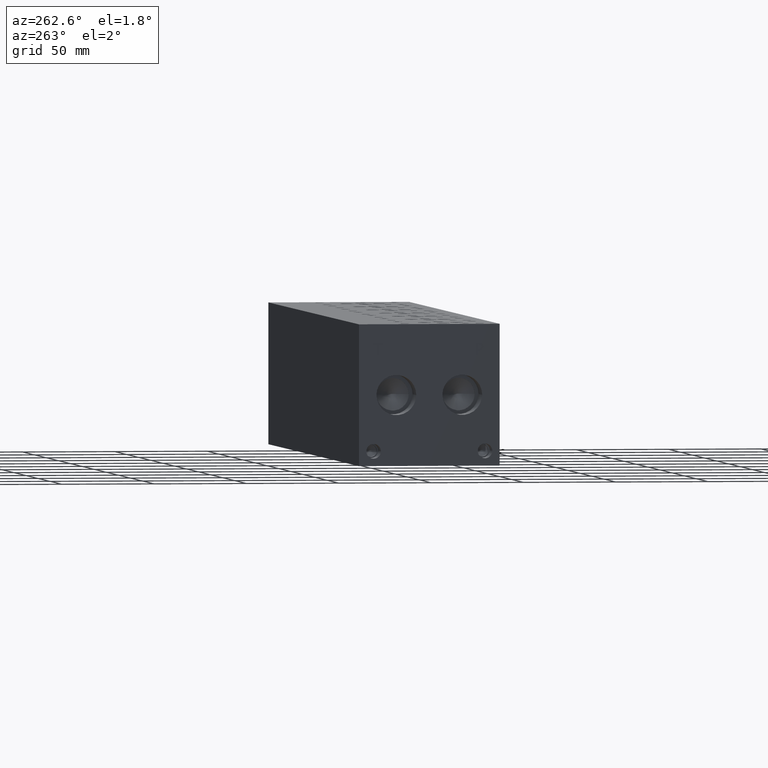
[diagram: clean part render]
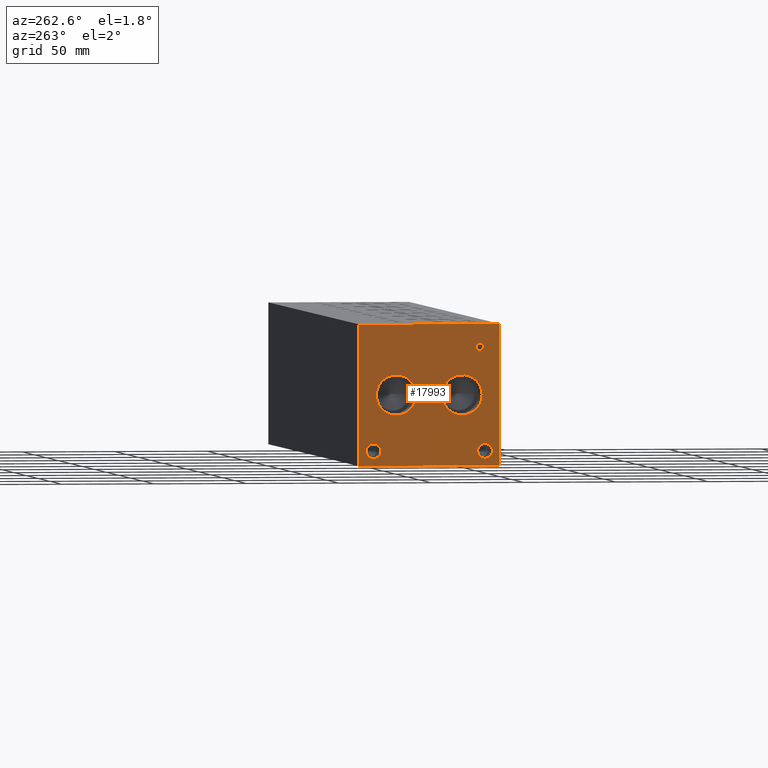
[diagram: same view with one face highlighted and labeled with its STEP entity id]
A machine part, auxiliary view. The second image highlights one B-rep face of the part: STEP entity #17993.
In plain terms, the highlighted planar face has unit normal (-1, 0, 0).
Its self-contained STEP definition (entity closure, byte-faithful):
#275=CIRCLE('',#18777,10.795);
#276=CIRCLE('',#18778,10.795);
#277=CIRCLE('',#18779,10.795);
#278=CIRCLE('',#18780,10.795);
#279=CIRCLE('',#18781,3.9624);
#280=CIRCLE('',#18782,3.9624);
#281=CIRCLE('',#18783,3.9624);
#282=CIRCLE('',#18784,3.9624);
#821=FACE_BOUND('',#3137,.T.);
#822=FACE_BOUND('',#3138,.T.);
#823=FACE_BOUND('',#3139,.T.);
#824=FACE_BOUND('',#3140,.T.);
#825=FACE_BOUND('',#3141,.T.);
#826=FACE_BOUND('',#3142,.T.);
#1382=PLANE('',#18776);
#2104=FACE_OUTER_BOUND('',#3136,.T.);
#3136=EDGE_LOOP('',(#14998,#14999,#15000,#15001));
#3137=EDGE_LOOP('',(#15002,#15003));
#3138=EDGE_LOOP('',(#15004,#15005));
#3139=EDGE_LOOP('',(#15006,#15007));
#3140=EDGE_LOOP('',(#15008,#15009));
#3141=EDGE_LOOP('',(#15010,#15011,#15012,#15013,#15014,#15015,#15016,#15017));
#3142=EDGE_LOOP('',(#15018,#15019,#15020,#15021,#15022,#15023,#15024,#15025,
#15026));
#3593=LINE('',#23911,#5185);
#4870=LINE('',#29973,#6462);
#4873=LINE('',#29979,#6465);
#4876=LINE('',#29985,#6468);
#4879=LINE('',#29991,#6471);
#4882=LINE('',#29997,#6474);
#4886=LINE('',#30039,#6478);
#4887=LINE('',#30041,#6479);
#4888=LINE('',#30042,#6480);
#4889=LINE('',#30061,#6481);
#4890=LINE('',#30063,#6482);
#4891=LINE('',#30065,#6483);
#4892=LINE('',#30067,#6484);
#4893=LINE('',#30069,#6485);
#4894=LINE('',#30071,#6486);
#4895=LINE('',#30073,#6487);
#4896=LINE('',#30074,#6488);
#5185=VECTOR('',#19598,10.);
#6462=VECTOR('',#21799,10.);
#6465=VECTOR('',#21804,10.);
#6468=VECTOR('',#21809,10.);
#6471=VECTOR('',#21814,10.);
#6474=VECTOR('',#21819,10.);
#6478=VECTOR('',#21827,10.);
#6479=VECTOR('',#21828,10.);
#6480=VECTOR('',#21829,10.);
#6481=VECTOR('',#21846,10.);
#6482=VECTOR('',#21847,10.);
#6483=VECTOR('',#21848,10.);
#6484=VECTOR('',#21849,10.);
#6485=VECTOR('',#21850,10.);
#6486=VECTOR('',#21851,10.);
#6487=VECTOR('',#21852,10.);
#6488=VECTOR('',#21853,10.);
#7150=B_SPLINE_CURVE_WITH_KNOTS('',2,(#29940,#29941,#29942,#29943),
 .UNSPECIFIED.,.F.,.F.,(3,1,3),(0.,1.,2.),.UNSPECIFIED.);
#7152=B_SPLINE_CURVE_WITH_KNOTS('',2,(#29961,#29962,#29963,#29964),
 .UNSPECIFIED.,.F.,.F.,(3,1,3),(0.,1.,2.),.UNSPECIFIED.);
#7154=B_SPLINE_CURVE_WITH_KNOTS('',2,(#30010,#30011,#30012,#30013),
 .UNSPECIFIED.,.F.,.F.,(3,1,3),(0.,1.,2.),.UNSPECIFIED.);
#7156=B_SPLINE_CURVE_WITH_KNOTS('',2,(#30028,#30029,#30030,#30031),
 .UNSPECIFIED.,.F.,.F.,(3,1,3),(0.,1.,2.),.UNSPECIFIED.);
#7206=VERTEX_POINT('',#23904);
#7209=VERTEX_POINT('',#23909);
#8358=VERTEX_POINT('',#29938);
#8359=VERTEX_POINT('',#29939);
#8362=VERTEX_POINT('',#29960);
#8364=VERTEX_POINT('',#29972);
#8366=VERTEX_POINT('',#29978);
#8368=VERTEX_POINT('',#29984);
#8370=VERTEX_POINT('',#29990);
#8372=VERTEX_POINT('',#29996);
#8374=VERTEX_POINT('',#30009);
#8376=VERTEX_POINT('',#30038);
#8377=VERTEX_POINT('',#30040);
#8378=VERTEX_POINT('',#30043);
#8379=VERTEX_POINT('',#30044);
#8380=VERTEX_POINT('',#30047);
#8381=VERTEX_POINT('',#30048);
#8382=VERTEX_POINT('',#30051);
#8383=VERTEX_POINT('',#30052);
#8384=VERTEX_POINT('',#30055);
#8385=VERTEX_POINT('',#30056);
#8386=VERTEX_POINT('',#30059);
#8387=VERTEX_POINT('',#30060);
#8388=VERTEX_POINT('',#30062);
#8389=VERTEX_POINT('',#30064);
#8390=VERTEX_POINT('',#30066);
#8391=VERTEX_POINT('',#30068);
#8392=VERTEX_POINT('',#30070);
#8393=VERTEX_POINT('',#30072);
#9014=EDGE_CURVE('',#7206,#7209,#3593,.T.);
#10718=EDGE_CURVE('',#8358,#8359,#7150,.T.);
#10722=EDGE_CURVE('',#8362,#8358,#7152,.T.);
#10725=EDGE_CURVE('',#8364,#8362,#4870,.T.);
#10728=EDGE_CURVE('',#8366,#8364,#4873,.T.);
#10731=EDGE_CURVE('',#8368,#8366,#4876,.T.);
#10734=EDGE_CURVE('',#8370,#8368,#4879,.T.);
#10737=EDGE_CURVE('',#8372,#8370,#4882,.T.);
#10740=EDGE_CURVE('',#8374,#8372,#7154,.T.);
#10743=EDGE_CURVE('',#8359,#8374,#7156,.T.);
#10745=EDGE_CURVE('',#8376,#7206,#4886,.T.);
#10746=EDGE_CURVE('',#8377,#7209,#4887,.T.);
#10747=EDGE_CURVE('',#8376,#8377,#4888,.T.);
#10748=EDGE_CURVE('',#8378,#8379,#275,.T.);
#10749=EDGE_CURVE('',#8379,#8378,#276,.T.);
#10750=EDGE_CURVE('',#8380,#8381,#277,.T.);
#10751=EDGE_CURVE('',#8381,#8380,#278,.T.);
#10752=EDGE_CURVE('',#8382,#8383,#279,.T.);
#10753=EDGE_CURVE('',#8383,#8382,#280,.T.);
#10754=EDGE_CURVE('',#8384,#8385,#281,.T.);
#10755=EDGE_CURVE('',#8385,#8384,#282,.T.);
#10756=EDGE_CURVE('',#8386,#8387,#4889,.T.);
#10757=EDGE_CURVE('',#8387,#8388,#4890,.T.);
#10758=EDGE_CURVE('',#8388,#8389,#4891,.T.);
#10759=EDGE_CURVE('',#8389,#8390,#4892,.T.);
#10760=EDGE_CURVE('',#8390,#8391,#4893,.T.);
#10761=EDGE_CURVE('',#8391,#8392,#4894,.T.);
#10762=EDGE_CURVE('',#8392,#8393,#4895,.T.);
#10763=EDGE_CURVE('',#8393,#8386,#4896,.T.);
#14998=ORIENTED_EDGE('',*,*,#10745,.T.);
#14999=ORIENTED_EDGE('',*,*,#9014,.T.);
#15000=ORIENTED_EDGE('',*,*,#10746,.F.);
#15001=ORIENTED_EDGE('',*,*,#10747,.F.);
#15002=ORIENTED_EDGE('',*,*,#10748,.T.);
#15003=ORIENTED_EDGE('',*,*,#10749,.T.);
#15004=ORIENTED_EDGE('',*,*,#10750,.T.);
#15005=ORIENTED_EDGE('',*,*,#10751,.T.);
#15006=ORIENTED_EDGE('',*,*,#10752,.T.);
#15007=ORIENTED_EDGE('',*,*,#10753,.T.);
#15008=ORIENTED_EDGE('',*,*,#10754,.T.);
#15009=ORIENTED_EDGE('',*,*,#10755,.T.);
#15010=ORIENTED_EDGE('',*,*,#10756,.T.);
#15011=ORIENTED_EDGE('',*,*,#10757,.T.);
#15012=ORIENTED_EDGE('',*,*,#10758,.T.);
#15013=ORIENTED_EDGE('',*,*,#10759,.T.);
#15014=ORIENTED_EDGE('',*,*,#10760,.T.);
#15015=ORIENTED_EDGE('',*,*,#10761,.T.);
#15016=ORIENTED_EDGE('',*,*,#10762,.T.);
#15017=ORIENTED_EDGE('',*,*,#10763,.T.);
#15018=ORIENTED_EDGE('',*,*,#10718,.T.);
#15019=ORIENTED_EDGE('',*,*,#10743,.T.);
#15020=ORIENTED_EDGE('',*,*,#10740,.T.);
#15021=ORIENTED_EDGE('',*,*,#10737,.T.);
#15022=ORIENTED_EDGE('',*,*,#10734,.T.);
#15023=ORIENTED_EDGE('',*,*,#10731,.T.);
#15024=ORIENTED_EDGE('',*,*,#10728,.T.);
#15025=ORIENTED_EDGE('',*,*,#10725,.T.);
#15026=ORIENTED_EDGE('',*,*,#10722,.T.);
#17993=ADVANCED_FACE('',(#2104,#821,#822,#823,#824,#825,#826),#1382,.T.);
#18776=AXIS2_PLACEMENT_3D('',#30037,#21825,#21826);
#18777=AXIS2_PLACEMENT_3D('',#30045,#21830,#21831);
#18778=AXIS2_PLACEMENT_3D('',#30046,#21832,#21833);
#18779=AXIS2_PLACEMENT_3D('',#30049,#21834,#21835);
#18780=AXIS2_PLACEMENT_3D('',#30050,#21836,#21837);
#18781=AXIS2_PLACEMENT_3D('',#30053,#21838,#21839);
#18782=AXIS2_PLACEMENT_3D('',#30054,#21840,#21841);
#18783=AXIS2_PLACEMENT_3D('',#30057,#21842,#21843);
#18784=AXIS2_PLACEMENT_3D('',#30058,#21844,#21845);
#19598=DIRECTION('',(0.,0.,1.));
#21799=DIRECTION('',(0.,-1.,0.));
#21804=DIRECTION('',(0.,-3.14708893596576E-15,1.));
#21809=DIRECTION('',(0.,1.,0.));
#21814=DIRECTION('',(0.,3.75218139805001E-15,-1.));
#21819=DIRECTION('',(0.,1.,0.));
#21825=DIRECTION('center_axis',(-1.,0.,0.));
#21826=DIRECTION('ref_axis',(0.,-1.,0.));
#21827=DIRECTION('',(0.,-1.,0.));
#21828=DIRECTION('',(0.,-1.,0.));
#21829=DIRECTION('',(0.,0.,1.));
#21830=DIRECTION('center_axis',(1.,0.,0.));
#21831=DIRECTION('ref_axis',(0.,1.,0.));
#21832=DIRECTION('center_axis',(1.,0.,0.));
#21833=DIRECTION('ref_axis',(0.,1.,0.));
#21834=DIRECTION('center_axis',(1.,0.,0.));
#21835=DIRECTION('ref_axis',(0.,1.,0.));
#21836=DIRECTION('center_axis',(1.,0.,0.));
#21837=DIRECTION('ref_axis',(0.,1.,0.));
#21838=DIRECTION('center_axis',(1.,0.,0.));
#21839=DIRECTION('ref_axis',(0.,1.,0.));
#21840=DIRECTION('center_axis',(1.,0.,0.));
#21841=DIRECTION('ref_axis',(0.,1.,0.));
#21842=DIRECTION('center_axis',(1.,0.,0.));
#21843=DIRECTION('ref_axis',(0.,1.,0.));
#21844=DIRECTION('center_axis',(1.,0.,0.));
#21845=DIRECTION('ref_axis',(0.,1.,0.));
#21846=DIRECTION('',(0.,1.,1.05244112384329E-14));
#21847=DIRECTION('',(0.,-3.17280044688052E-15,1.));
#21848=DIRECTION('',(0.,1.,4.16909044227779E-15));
#21849=DIRECTION('',(0.,0.,1.));
#21850=DIRECTION('',(0.,-1.,-3.47984565141735E-15));
#21851=DIRECTION('',(0.,0.,-1.));
#21852=DIRECTION('',(0.,1.,0.));
#21853=DIRECTION('',(0.,3.17280044688052E-15,-1.));
#23904=CARTESIAN_POINT('',(0.,0.,0.));
#23909=CARTESIAN_POINT('',(0.,0.,76.2));
#23911=CARTESIAN_POINT('',(0.,0.,0.));
#29938=CARTESIAN_POINT('',(0.,9.59318279764059,65.4850181439707));
#29939=CARTESIAN_POINT('',(0.,8.83674034546799,63.966987372604));
#29940=CARTESIAN_POINT('Ctrl Pts',(0.,9.59318279764059,65.4850181439707));
#29941=CARTESIAN_POINT('Ctrl Pts',(0.,9.23811797315141,65.2431623939564));
#29942=CARTESIAN_POINT('Ctrl Pts',(0.,8.83674034546799,64.4970116758269));
#29943=CARTESIAN_POINT('Ctrl Pts',(0.,8.83674034546799,63.966987372604));
#29960=CARTESIAN_POINT('',(0.,11.2552978456117,65.8812499046326));
#29961=CARTESIAN_POINT('Ctrl Pts',(0.,11.2552978456117,65.8812499046326));
#29962=CARTESIAN_POINT('Ctrl Pts',(0.,10.6892524732376,65.8812499046326));
#29963=CARTESIAN_POINT('Ctrl Pts',(0.,9.89678895191394,65.6959986918556));
#29964=CARTESIAN_POINT('Ctrl Pts',(0.,9.59318279764059,65.4850181439707));
#29972=CARTESIAN_POINT('',(0.,12.8505166223022,65.8812499046326));
#29973=CARTESIAN_POINT('',(0.,44.5252583111511,65.8812499046326));
#29978=CARTESIAN_POINT('',(0.,12.8505166223022,59.53125));
#29979=CARTESIAN_POINT('',(0.,12.8505166223023,29.7656249999999));
#29984=CARTESIAN_POINT('',(0.,12.0065944307627,59.53125));
#29985=CARTESIAN_POINT('',(0.,44.1032972153814,59.53125));
#29990=CARTESIAN_POINT('',(0.,12.0065944307627,61.8983488299279));
#29991=CARTESIAN_POINT('',(0.,12.0065944307628,30.9491744149638));
#29996=CARTESIAN_POINT('',(0.,11.2913189147628,61.8983488299279));
#29997=CARTESIAN_POINT('',(0.,43.7456594573814,61.8983488299279));
#30009=CARTESIAN_POINT('',(0.,9.39249398379889,62.5570198086904));
#30010=CARTESIAN_POINT('Ctrl Pts',(0.,9.39249398379889,62.5570198086904));
#30011=CARTESIAN_POINT('Ctrl Pts',(0.,9.72182947318016,62.2328301863307));
#30012=CARTESIAN_POINT('Ctrl Pts',(0.,10.6120644679139,61.8983488299279));
#30013=CARTESIAN_POINT('Ctrl Pts',(0.,11.2913189147628,61.8983488299279));
#30028=CARTESIAN_POINT('Ctrl Pts',(0.,8.83674034546799,63.966987372604));
#30029=CARTESIAN_POINT('Ctrl Pts',(0.,8.83674034546799,63.5553180108774));
#30030=CARTESIAN_POINT('Ctrl Pts',(0.,9.13005476569819,62.8143131597695));
#30031=CARTESIAN_POINT('Ctrl Pts',(0.,9.39249398379889,62.5570198086904));
#30037=CARTESIAN_POINT('Origin',(0.,76.2,0.));
#30038=CARTESIAN_POINT('',(0.,76.2,0.));
#30039=CARTESIAN_POINT('',(0.,76.2,0.));
#30040=CARTESIAN_POINT('',(0.,76.2,76.2));
#30041=CARTESIAN_POINT('',(0.,76.2,76.2));
#30042=CARTESIAN_POINT('',(0.,76.2,0.));
#30043=CARTESIAN_POINT('',(0.,31.0388,38.1));
#30044=CARTESIAN_POINT('',(0.,9.4488,38.1));
#30045=CARTESIAN_POINT('Origin',(0.,20.2438,38.1));
#30046=CARTESIAN_POINT('Origin',(0.,20.2438,38.1));
#30047=CARTESIAN_POINT('',(0.,66.7512,38.1));
#30048=CARTESIAN_POINT('',(0.,45.1612,38.1));
#30049=CARTESIAN_POINT('Origin',(0.,55.9562,38.1));
#30050=CARTESIAN_POINT('Origin',(0.,55.9562,38.1));
#30051=CARTESIAN_POINT('',(0.,72.2376,7.92480000000001));
#30052=CARTESIAN_POINT('',(0.,64.3128,7.92480000000001));
#30053=CARTESIAN_POINT('Origin',(0.,68.2752,7.92480000000001));
#30054=CARTESIAN_POINT('Origin',(0.,68.2752,7.92480000000001));
#30055=CARTESIAN_POINT('',(0.,11.8872,7.92480000000001));
#30056=CARTESIAN_POINT('',(0.,3.9624,7.92480000000001));
#30057=CARTESIAN_POINT('Origin',(0.,7.9248,7.92480000000001));
#30058=CARTESIAN_POINT('Origin',(0.,7.9248,7.92480000000001));
#30059=CARTESIAN_POINT('',(0.,65.293334728547,59.53125));
#30060=CARTESIAN_POINT('',(0.,66.1372569200865,59.53125));
#30061=CARTESIAN_POINT('',(0.,70.7466673642732,59.5312500000001));
#30062=CARTESIAN_POINT('',(0.,66.1372569200865,65.1299533194816));
#30063=CARTESIAN_POINT('',(0.,66.1372569200866,29.765625));
#30064=CARTESIAN_POINT('',(0.,68.2676458670216,65.1299533194816));
#30065=CARTESIAN_POINT('',(0.,71.1686284600431,65.1299533194816));
#30066=CARTESIAN_POINT('',(0.,68.2676458670216,65.8812499046326));
#30067=CARTESIAN_POINT('',(0.,68.2676458670216,32.5649766597408));
#30068=CARTESIAN_POINT('',(0.,63.1629457816119,65.8812499046326));
#30069=CARTESIAN_POINT('',(0.,72.2338229335107,65.8812499046326));
#30070=CARTESIAN_POINT('',(0.,63.1629457816119,65.1299533194816));
#30071=CARTESIAN_POINT('',(0.,63.1629457816119,32.9406249523163));
#30072=CARTESIAN_POINT('',(0.,65.293334728547,65.1299533194816));
#30073=CARTESIAN_POINT('',(0.,69.681472890806,65.1299533194816));
#30074=CARTESIAN_POINT('',(0.,65.2933347285471,32.5649766597408));